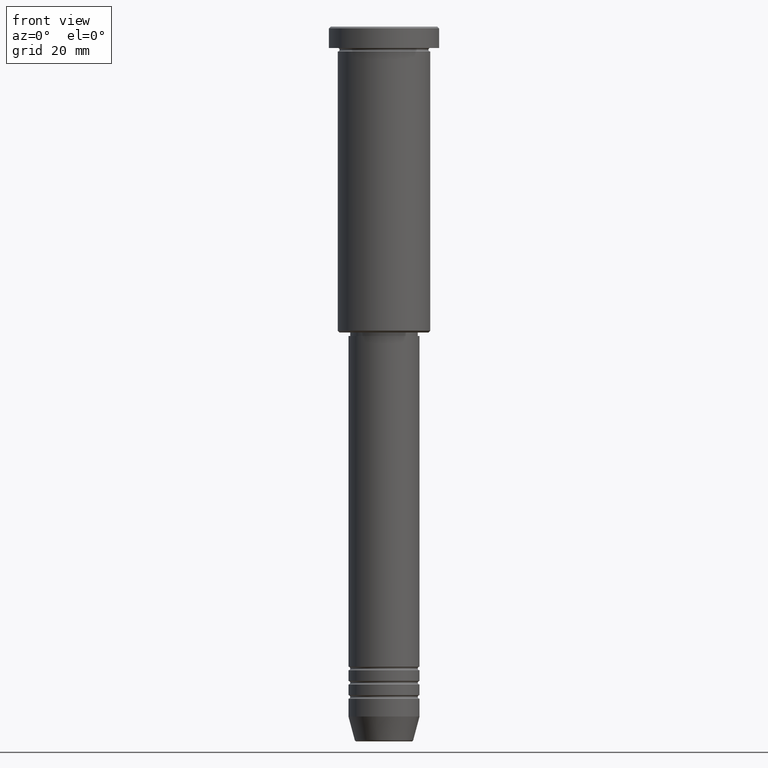
[diagram: clean part render]
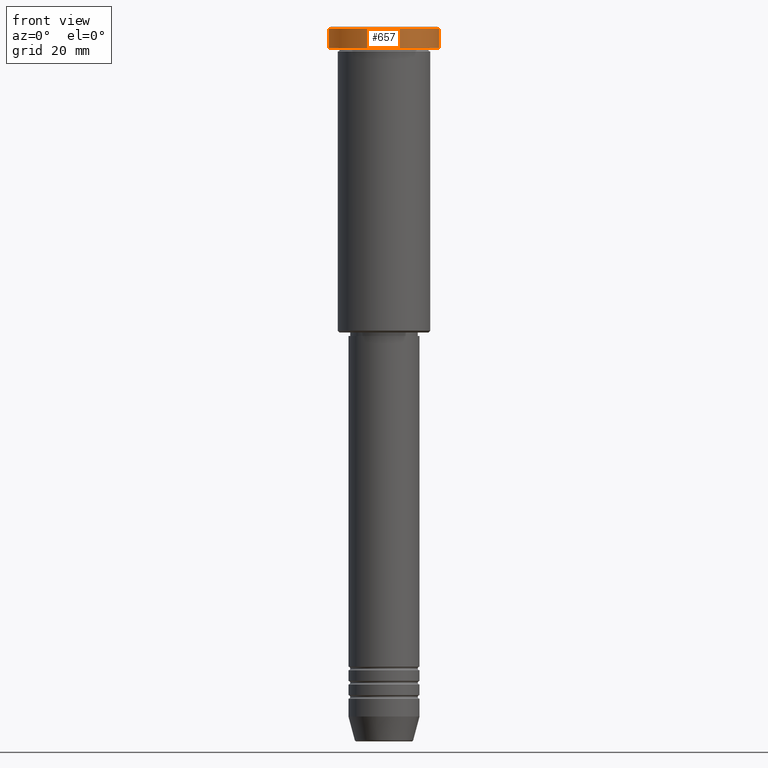
[diagram: same view with one face highlighted and labeled with its STEP entity id]
A machine part, front view. The second image highlights one B-rep face of the part: STEP entity #657.
In plain terms, the highlighted cylindrical surface (partial cylindrical patch) has radius 15.5 mm, axis along (-0, -0, 1).
Its self-contained STEP definition (entity closure, byte-faithful):
#22 = CARTESIAN_POINT ( 'NONE',  ( 15.50000000000000000, 0.000000000000000000, -0.5000000000000125455 ) ) ;
#30 = LINE ( 'NONE', #647, #344 ) ;
#31 = LINE ( 'NONE', #649, #32 ) ;
#32 = VECTOR ( 'NONE', #846, 1000.000000000000000 ) ;
#34 = VERTEX_POINT ( 'NONE', #896 ) ;
#53 = ORIENTED_EDGE ( 'NONE', *, *, #1160, .F. ) ;
#77 = ORIENTED_EDGE ( 'NONE', *, *, #874, .T. ) ;
#85 = CARTESIAN_POINT ( 'NONE',  ( 0.000000000000000000, 0.000000000000000000, -5.999999999999995559 ) ) ;
#195 = DIRECTION ( 'NONE',  ( -0.000000000000000000, -0.000000000000000000, 1.000000000000000000 ) ) ;
#219 = CARTESIAN_POINT ( 'NONE',  ( 0.000000000000000000, 0.000000000000000000, 0.000000000000000000 ) ) ;
#259 = CIRCLE ( 'NONE', #889, 15.50000000000000000 ) ;
#266 = VERTEX_POINT ( 'NONE', #1015 ) ;
#297 = DIRECTION ( 'NONE',  ( 1.000000000000000000, 0.000000000000000000, 0.000000000000000000 ) ) ;
#344 = VECTOR ( 'NONE', #764, 1000.000000000000000 ) ;
#380 = ORIENTED_EDGE ( 'NONE', *, *, #864, .T. ) ;
#437 = CIRCLE ( 'NONE', #762, 15.50000000000000000 ) ;
#480 = DIRECTION ( 'NONE',  ( 1.000000000000000000, 0.000000000000000000, 0.000000000000000000 ) ) ;
#550 = VERTEX_POINT ( 'NONE', #22 ) ;
#560 = CARTESIAN_POINT ( 'NONE',  ( 15.50000000000000000, 0.000000000000000000, -5.999999999999995559 ) ) ;
#565 = VERTEX_POINT ( 'NONE', #560 ) ;
#575 = FACE_OUTER_BOUND ( 'NONE', #898, .T. ) ;
#585 = AXIS2_PLACEMENT_3D ( 'NONE', #219, #195, #297 ) ;
#623 = DIRECTION ( 'NONE',  ( -0.000000000000000000, -0.000000000000000000, 1.000000000000000000 ) ) ;
#647 = CARTESIAN_POINT ( 'NONE',  ( -15.50000000000000000, 1.898202538678397557E-15, 0.000000000000000000 ) ) ;
#649 = CARTESIAN_POINT ( 'NONE',  ( 15.50000000000000000, 0.000000000000000000, 0.000000000000000000 ) ) ;
#657 = ADVANCED_FACE ( 'NONE', ( #575 ), #1031, .T. ) ;
#665 = ORIENTED_EDGE ( 'NONE', *, *, #731, .T. ) ;
#731 = EDGE_CURVE ( 'NONE', #34, #565, #259, .T. ) ;
#762 = AXIS2_PLACEMENT_3D ( 'NONE', #859, #1125, #480 ) ;
#764 = DIRECTION ( 'NONE',  ( -0.000000000000000000, -0.000000000000000000, 1.000000000000000000 ) ) ;
#846 = DIRECTION ( 'NONE',  ( -0.000000000000000000, -0.000000000000000000, 1.000000000000000000 ) ) ;
#859 = CARTESIAN_POINT ( 'NONE',  ( 0.000000000000000000, 0.000000000000000000, -0.5000000000000125455 ) ) ;
#864 = EDGE_CURVE ( 'NONE', #565, #550, #31, .T. ) ;
#874 = EDGE_CURVE ( 'NONE', #550, #266, #437, .T. ) ;
#889 = AXIS2_PLACEMENT_3D ( 'NONE', #85, #623, #897 ) ;
#896 = CARTESIAN_POINT ( 'NONE',  ( -15.50000000000000000, 1.898202538678397557E-15, -5.999999999999995559 ) ) ;
#897 = DIRECTION ( 'NONE',  ( 1.000000000000000000, 0.000000000000000000, 0.000000000000000000 ) ) ;
#898 = EDGE_LOOP ( 'NONE', ( #53, #665, #380, #77 ) ) ;
#1015 = CARTESIAN_POINT ( 'NONE',  ( -15.50000000000000000, 1.898202538678397557E-15, -0.5000000000000125455 ) ) ;
#1031 = CYLINDRICAL_SURFACE ( 'NONE', #585, 15.50000000000000000 ) ;
#1125 = DIRECTION ( 'NONE',  ( 0.000000000000000000, 0.000000000000000000, -1.000000000000000000 ) ) ;
#1160 = EDGE_CURVE ( 'NONE', #34, #266, #30, .T. ) ;